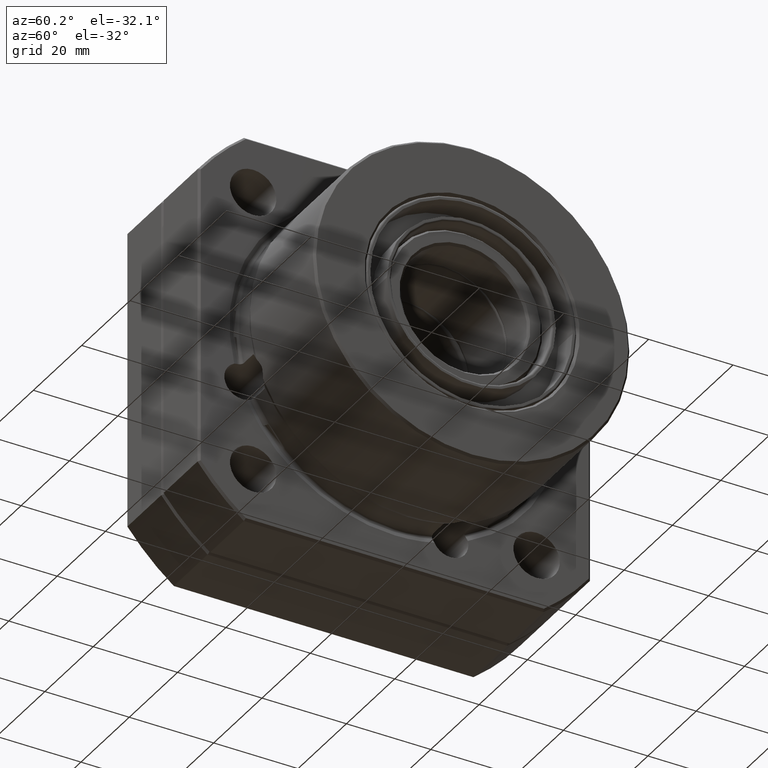
[diagram: clean part render]
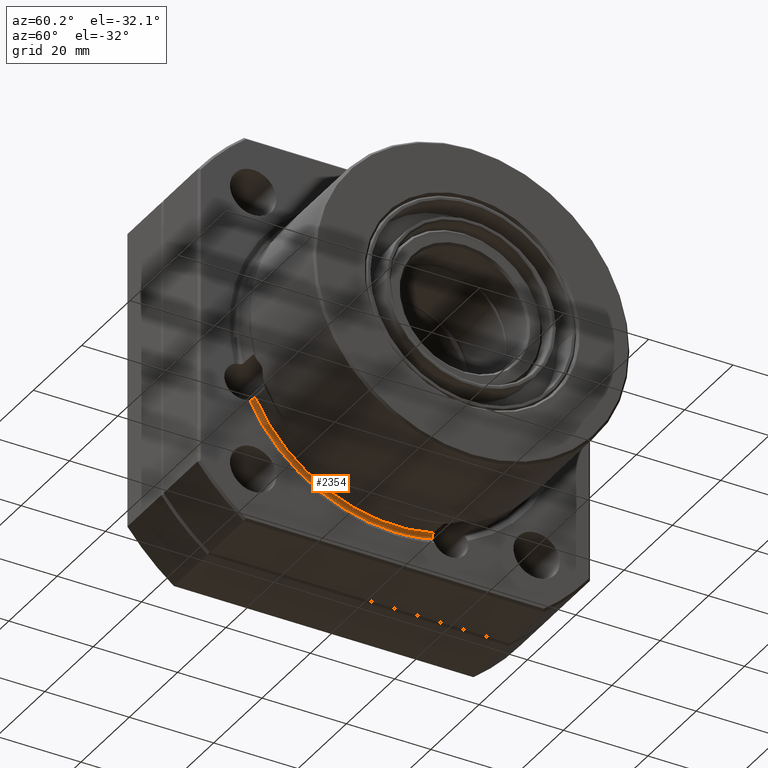
[diagram: same view with one face highlighted and labeled with its STEP entity id]
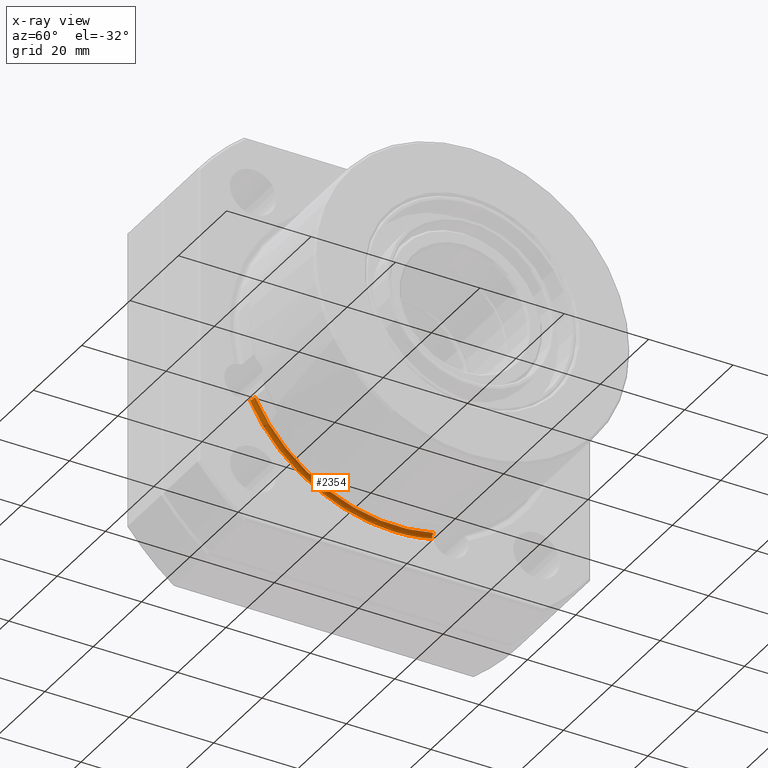
[diagram: x-ray of the same camera — body ghosted, the highlighted face saturated]
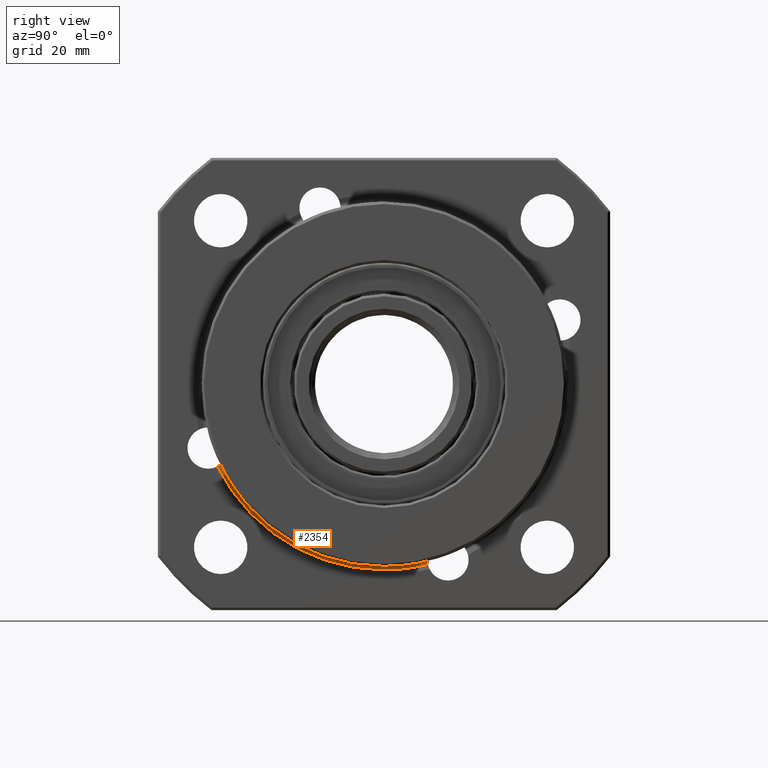
[diagram: same view with one face highlighted and labeled with its STEP entity id]
A machine part, auxiliary view. The second image highlights one B-rep face of the part: STEP entity #2354.
The next image is the same camera in x-ray: the body ghosted, the highlighted face saturated — about 0% of this face is hidden behind the body in this view.
A second angle (right view) of the same face is appended — the face is thin or edge-on in the first view.
In plain terms, the highlighted toroidal blend (fillet) surface has major radius 38 mm and minor (blend) radius 0.8 mm.
Its self-contained STEP definition (entity closure, byte-faithful):
#588 = VERTEX_POINT ( 'NONE', #6518 ) ;
#598 = EDGE_CURVE ( 'NONE', #673, #588, #6558, .T. ) ;
#673 = VERTEX_POINT ( 'NONE', #6706 ) ;
#675 = EDGE_CURVE ( 'NONE', #4014, #673, #6701, .T. ) ;
#899 = EDGE_CURVE ( 'NONE', #4015, #900, #7590, .T. ) ;
#900 = VERTEX_POINT ( 'NONE', #7570 ) ;
#2354 = ADVANCED_FACE ( 'NONE', ( #10378 ), #10377, .F. ) ;
#2379 = EDGE_LOOP ( 'NONE', ( #5564, #5576, #5043, #4164, #4191 ) ) ;
#4009 = EDGE_CURVE ( 'NONE', #4014, #4015, #13248, .T. ) ;
#4014 = VERTEX_POINT ( 'NONE', #13291 ) ;
#4015 = VERTEX_POINT ( 'NONE', #13286 ) ;
#4164 = ORIENTED_EDGE ( 'NONE', *, *, #675, .F. ) ;
#4191 = ORIENTED_EDGE ( 'NONE', *, *, #4009, .T. ) ;
#5043 = ORIENTED_EDGE ( 'NONE', *, *, #598, .F. ) ;
#5564 = ORIENTED_EDGE ( 'NONE', *, *, #899, .T. ) ;
#5576 = ORIENTED_EDGE ( 'NONE', *, *, #5600, .T. ) ;
#5600 = EDGE_CURVE ( 'NONE', #900, #588, #13512, .T. ) ;
#6518 = CARTESIAN_POINT ( 'NONE',  ( 14.72857557779164100, -34.24543127983608300, -16.95288276711604800 ) ) ;
#6551 = DIRECTION ( 'NONE',  ( 0.0000000000000000000, 0.0000000000000000000, 1.000000000000000000 ) ) ;
#6552 = DIRECTION ( 'NONE',  ( -1.000000000000000000, -0.0000000000000000000, -0.0000000000000000000 ) ) ;
#6553 = CARTESIAN_POINT ( 'NONE',  ( 14.72857557779164100, 0.0000000000000000000, 0.0000000000000000000 ) ) ;
#6554 = AXIS2_PLACEMENT_3D ( 'NONE', #6553, #6552, #6551 ) ;
#6558 = CIRCLE ( 'NONE', #6554, 38.21190649074651400 ) ;
#6697 = DIRECTION ( 'NONE',  ( 0.0000000000000000000, 0.0000000000000000000, 1.000000000000000000 ) ) ;
#6698 = DIRECTION ( 'NONE',  ( -1.000000000000000000, -0.0000000000000000000, -0.0000000000000000000 ) ) ;
#6699 = CARTESIAN_POINT ( 'NONE',  ( 14.72857557779164100, 0.0000000000000000000, 0.0000000000000000000 ) ) ;
#6700 = AXIS2_PLACEMENT_3D ( 'NONE', #6699, #6698, #6697 ) ;
#6701 = CIRCLE ( 'NONE', #6700, 38.21190649074651400 ) ;
#6706 = CARTESIAN_POINT ( 'NONE',  ( 14.72857557779164100, 0.0000000000000000000, -38.21190649074651400 ) ) ;
#7570 = CARTESIAN_POINT ( 'NONE',  ( 15.50000000000000000, -33.39835521781722600, -16.38260872829783600 ) ) ;
#7587 = DIRECTION ( 'NONE',  ( 0.0000000000000000000, 0.0000000000000000000, 1.000000000000000000 ) ) ;
#7588 = DIRECTION ( 'NONE',  ( -1.000000000000000000, -0.0000000000000000000, -0.0000000000000000000 ) ) ;
#7589 = AXIS2_PLACEMENT_3D ( 'NONE', #7591, #7588, #7587 ) ;
#7590 = CIRCLE ( 'NONE', #7589, 37.19999999999999600 ) ;
#7591 = CARTESIAN_POINT ( 'NONE',  ( 15.50000000000000000, 0.0000000000000000000, 0.0000000000000000000 ) ) ;
#10373 = DIRECTION ( 'NONE',  ( 0.0000000000000000000, 0.0000000000000000000, 1.000000000000000000 ) ) ;
#10374 = DIRECTION ( 'NONE',  ( -1.000000000000000000, -0.0000000000000000000, -0.0000000000000000000 ) ) ;
#10375 = CARTESIAN_POINT ( 'NONE',  ( 15.50000000000000200, 0.0000000000000000000, 0.0000000000000000000 ) ) ;
#10376 = AXIS2_PLACEMENT_3D ( 'NONE', #10375, #10374, #10373 ) ;
#10377 = TOROIDAL_SURFACE ( 'NONE', #10376, 38.00000000000000000, 0.8000000000000012700 ) ;
#10378 = FACE_OUTER_BOUND ( 'NONE', #2379, .T. ) ;
#13248 = B_SPLINE_CURVE_WITH_KNOTS ( 'NONE', 3,
 ( #13301, #13300, #13299, #13298, #13297, #13296, #13295, #13294, #13293, #13292 ),
 .UNSPECIFIED., .F., .F.,
 ( 4, 2, 2, 2, 4 ),
 ( 0.001038347827175884000, 0.001406037683516240700, 0.001773727539856597500, 0.002141417396196954200, 0.002509107252537310900 ),
 .UNSPECIFIED. ) ;
#13286 = CARTESIAN_POINT ( 'NONE',  ( 15.50000000000000000, 8.918242537817066700, -36.11516232881516000 ) ) ;
#13291 = CARTESIAN_POINT ( 'NONE',  ( 14.72857557779164100, 9.025877276453135400, -37.13062532530206300 ) ) ;
#13292 = CARTESIAN_POINT ( 'NONE',  ( 15.50000000000000000, 8.918242537817066700, -36.11516232881516000 ) ) ;
#13293 = CARTESIAN_POINT ( 'NONE',  ( 15.37563025468509200, 8.918242537817073800, -36.11516232881482600 ) ) ;
#13294 = CARTESIAN_POINT ( 'NONE',  ( 15.25417645969912100, 8.917528450858325700, -36.14495339734661200 ) ) ;
#13295 = CARTESIAN_POINT ( 'NONE',  ( 15.03301232870224000, 8.918151242004855200, -36.25814536617730300 ) ) ;
#13296 = CARTESIAN_POINT ( 'NONE',  ( 14.93736095399922400, 8.919714692546236300, -36.33978255276892400 ) ) ;
#13297 = CARTESIAN_POINT ( 'NONE',  ( 14.79009081677916800, 8.931710643493742600, -36.53579014174452100 ) ) ;
#13298 = CARTESIAN_POINT ( 'NONE',  ( 14.73846884681454100, 8.942419950609767900, -36.65087108535757900 ) ) ;
#13299 = CARTESIAN_POINT ( 'NONE',  ( 14.69138530832932000, 8.976074244711822900, -36.89000878911220100 ) ) ;
#13300 = CARTESIAN_POINT ( 'NONE',  ( 14.69585761776114200, 8.999182489721723900, -37.01453944561524200 ) ) ;
#13301 = CARTESIAN_POINT ( 'NONE',  ( 14.72857557779164100, 9.025877276453135400, -37.13062532530206300 ) ) ;
#13500 = CARTESIAN_POINT ( 'NONE',  ( 14.72857557779164100, -34.24543127983608300, -16.95288276711604800 ) ) ;
#13501 = CARTESIAN_POINT ( 'NONE',  ( 14.69609153071940000, -34.14010370734768400, -16.89910087074234500 ) ) ;
#13502 = CARTESIAN_POINT ( 'NONE',  ( 14.69125710013439300, -34.03002299554283600, -16.83693038595156500 ) ) ;
#13503 = CARTESIAN_POINT ( 'NONE',  ( 14.73839298802602300, -33.82423475342920200, -16.70842850015886700 ) ) ;
#13504 = CARTESIAN_POINT ( 'NONE',  ( 14.78998061579860800, -33.72926831344603500, -16.64270172673171500 ) ) ;
#13505 = CARTESIAN_POINT ( 'NONE',  ( 14.93793556157217300, -33.57083666132012900, -16.52546010512175600 ) ) ;
#13506 = CARTESIAN_POINT ( 'NONE',  ( 15.03455004398603600, -33.50717991879488300, -16.47405112734018900 ) ) ;
#13507 = CARTESIAN_POINT ( 'NONE',  ( 15.25319002389434600, -33.42114844368511900, -16.40266025508682200 ) ) ;
#13508 = CARTESIAN_POINT ( 'NONE',  ( 15.37555623451080900, -33.39835521781723300, -16.38260872829783900 ) ) ;
#13509 = CARTESIAN_POINT ( 'NONE',  ( 15.50000000000000000, -33.39835521781722600, -16.38260872829783600 ) ) ;
#13512 = B_SPLINE_CURVE_WITH_KNOTS ( 'NONE', 3,
 ( #13509, #13508, #13507, #13506, #13505, #13504, #13503, #13502, #13501, #13500 ),
 .UNSPECIFIED., .F., .F.,
 ( 4, 2, 2, 2, 4 ),
 ( 1.971050346744872400E-007, 0.0003681326692533022600, 0.0007360682334719300400, 0.001104003797690557800, 0.001471939361909185600 ),
 .UNSPECIFIED. ) ;